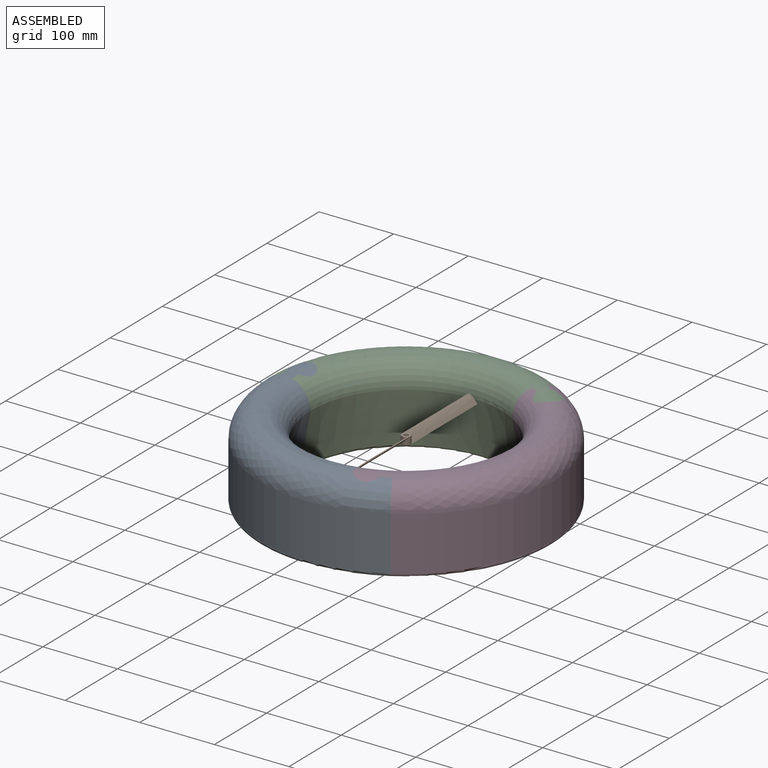
[diagram: assembled view]
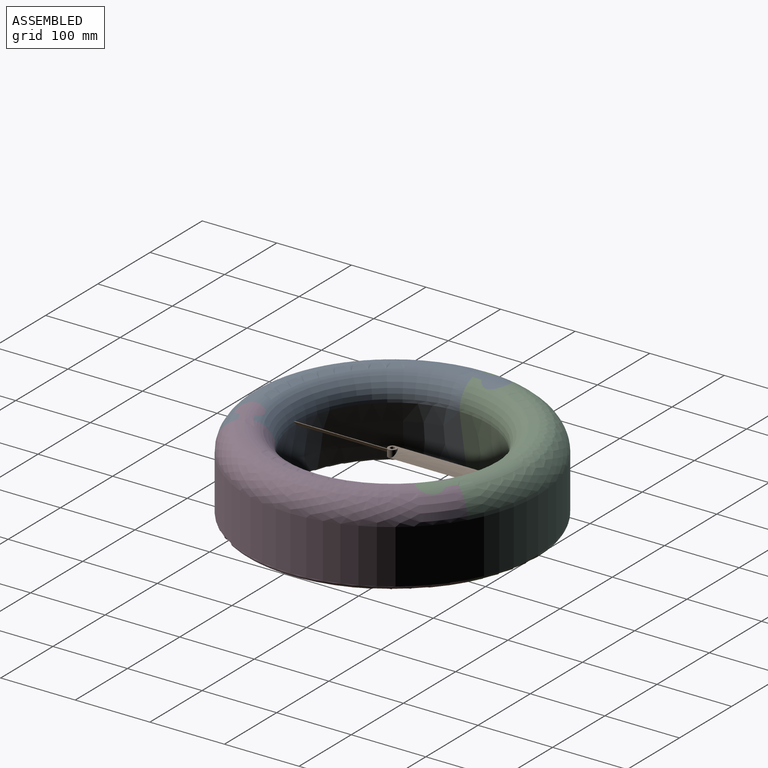
[diagram: assembled view, second angle]
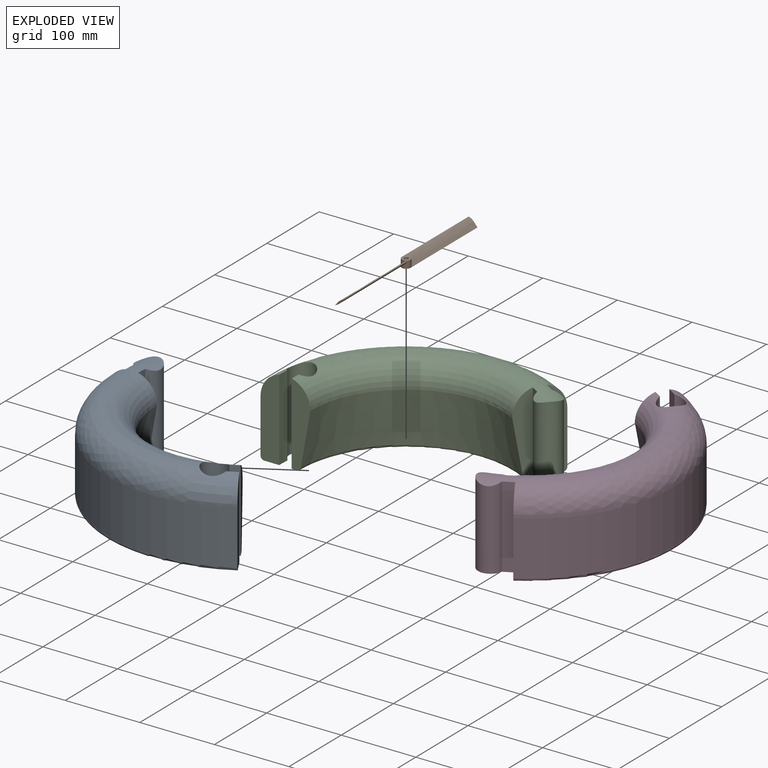
[diagram: exploded view]
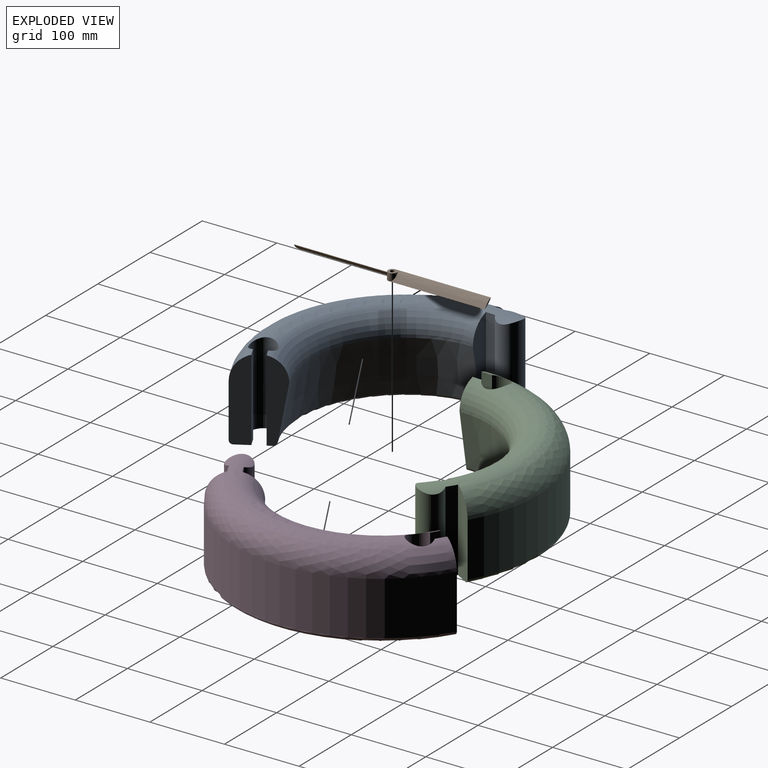
[diagram: exploded view, second angle]
ASSEMBLY  parts=4 mates=3
PART A: 18 faces, bbox 351.8x211.4x111.3 mm
  f0: cylinder r=195.32mm len=292.98mm, axis (0,0,1), area 29494.5mm2, adj f5,f6,f16,f17
  f1: plane 311.19x190.32mm, normal (0,0,-1), area 15410.2mm2, adj f2,f3,f6,f8,f9,f10,f12,f13
  f2: torus R=146.29mm, axis (0,0,1), area 9.4mm2, adj f1,f12
  f3: torus R=146.29mm, axis (0,0,1), area 2086.4mm2, adj f1,f4,f7,f13,f14,f15
  f4: cone r=141.37mm half-angle=10deg, axis (0,0,-1), area 20939.2mm2, adj f3,f5,f14,f15
  f5: revolved ~335.72x195.3mm, area 35590.3mm2, adj f0,f4,f8,f9,f10,f11,f12,f13
  f6: torus R=190.32mm, axis (0,0,1), area 3183mm2, adj f0,f1,f16,f17
  f7: plane 19.59x8.54mm, normal (0,0,-1), area 110.1mm2, adj f3,f11,f13,f15
  f8: cylinder r=170.31mm len=109.44mm, axis (0,0,1), area 1619.5mm2, adj f1,f5,f13,f16
  f9: cylinder r=170.31mm len=109.44mm, axis (0,0,1), area 1619.5mm2, adj f1,f5,f12,f17
  f10: cylinder r=153.51mm len=109.44mm, axis (0,0,1), area 1381.2mm2, adj f1,f5,f12,f14
  f11: cylinder r=153.51mm len=109.44mm, axis (0,0,1), area 1381.2mm2, adj f5,f7,f13,f15
  f12: cylinder r=16.8mm len=110.51mm, axis (0,0,1), area 9489.8mm2, adj f1,f2,f5,f9,f10
  f13: cylinder r=16.8mm len=110.51mm, axis (0,0,1), area 9489.8mm2, adj f1,f3,f5,f7,f8,f11
  f14: plane 111.31x23.53mm, normal (0.87,-0.5,0), area 1999.7mm2, adj f1,f3,f4,f5,f10
  f15: plane 111.31x26.88mm, normal (0,-1,0), area 1999.7mm2, adj f3,f4,f5,f7,f11
  f16: plane 111.31x26.88mm, normal (0,-1,0), area 2521.9mm2, adj f0,f1,f5,f6,f8
  f17: plane 111.31x23.53mm, normal (0.87,-0.5,0), area 2521.9mm2, adj f0,f1,f5,f6,f9
PART B: 11 faces, bbox 12x256x10 mm
  f0: cylinder r=6mm len=12mm, axis (0,0,-1), area 188.5mm2, adj f3,f4,f7,f10
  f1: cylinder r=3mm len=10mm, axis (0,0,-1), area 188.5mm2, adj f3,f4
  f2: cylinder r=6mm len=12mm, axis (0,0,-1), area 188.5mm2, adj f3,f4,f6,f9
  f3: plane 12x12mm, normal (0,0,1), area 84.8mm2, adj f0,f1,f2
  f4: plane 12x12mm, normal (0,0,-1), area 84.8mm2, adj f0,f1,f2
  f5: plane 12x10mm, normal (0,-1,0), area 25.6mm2, adj f6,f7
  f6: cylinder r=33.77mm len=128mm, axis (0,1,0), area 1943.9mm2, adj f2,f5,f7
  f7: extruded ~128x12mm, area 1982.9mm2, adj f0,f5,f6
  f8: plane 12x10mm, normal (0,1,0), area 25.6mm2, adj f9,f10
  f9: extruded ~128x12mm, area 1982.9mm2, adj f2,f8,f10
  f10: cylinder r=33.77mm len=128mm, axis (0,-1,0), area 1943.9mm2, adj f0,f8,f9
PART C: same geometry as A
PART D: same geometry as A
PLACE A rot(axis=(0,0,1),120deg) t=(-77.6,-79.15,98.4)mm
PLACE B t=(-77.6,-79.15,93.4)mm
PLACE C t=(-77.6,-79.15,98.4)mm
PLACE D rot(axis=(0,0,-1),120deg) t=(-77.6,-79.15,98.4)mm
MATE fastened B.f1 <-> C.f0  axis (0,0,1) through (-77.6,-79.15,103.4)mm
MATE fastened D.f16 <-> C.f17  axis (-0.87,0.5,0) through (7.56,68.35,130.74)mm
MATE fastened A.f16 <-> D.f17  axis (0.87,0.5,0) through (7.56,-226.64,130.74)mm
